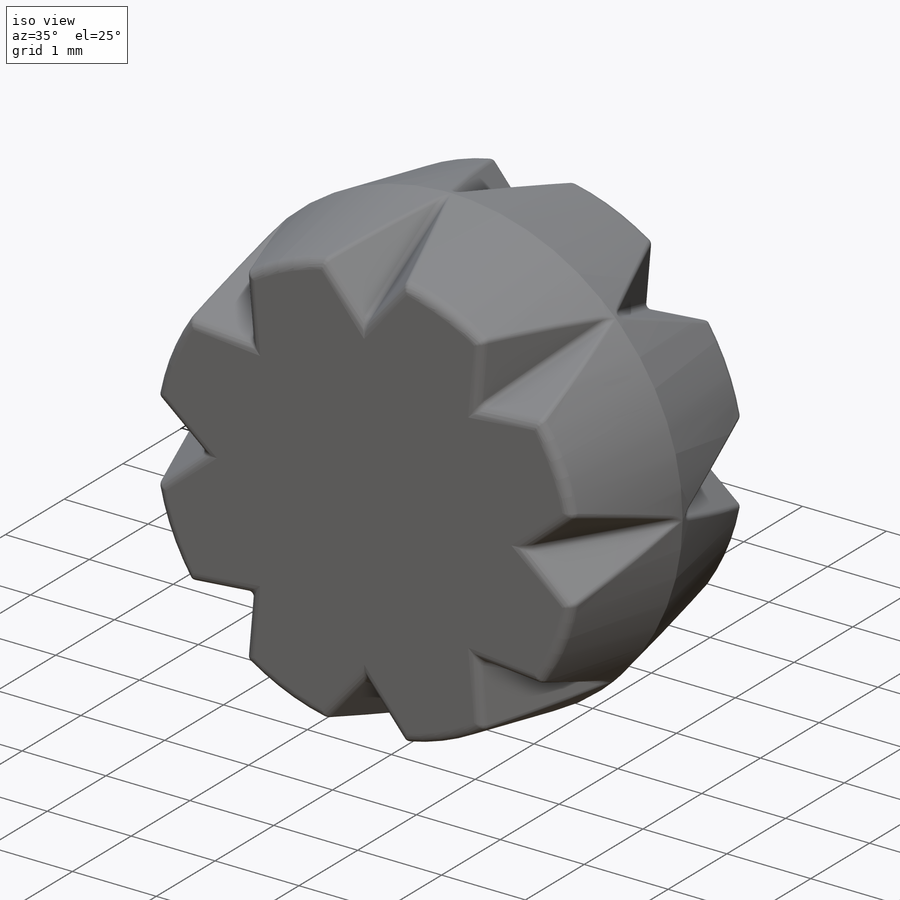
[diagram: iso view]
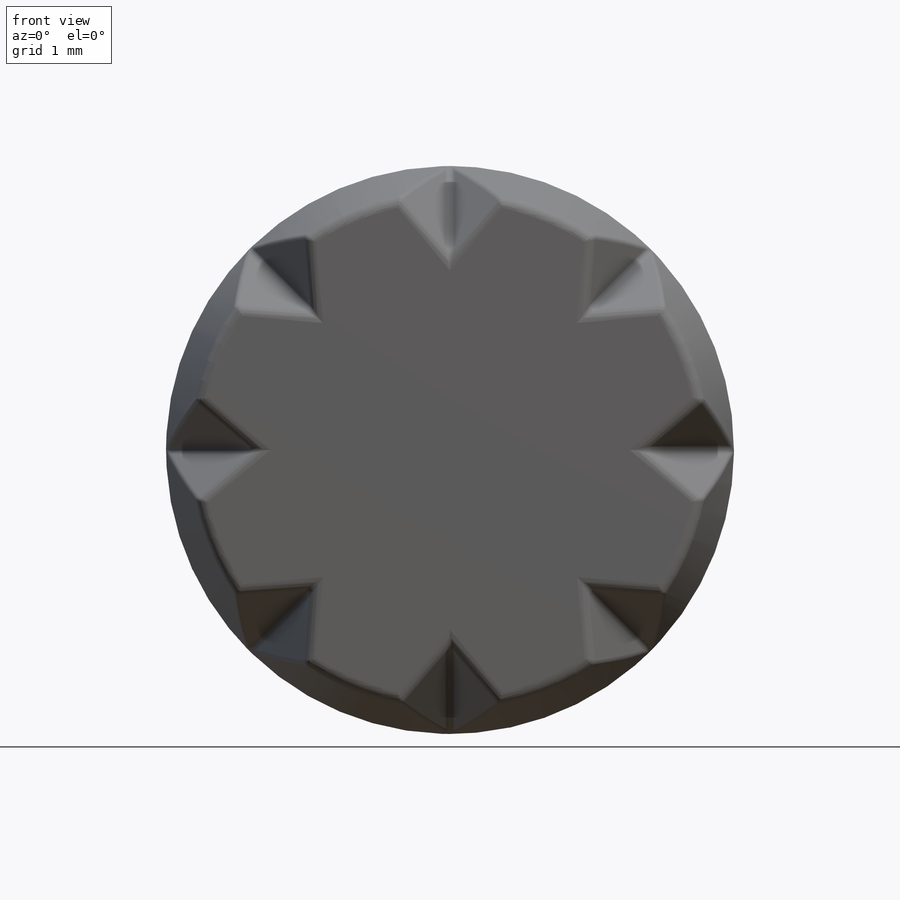
[diagram: front view]
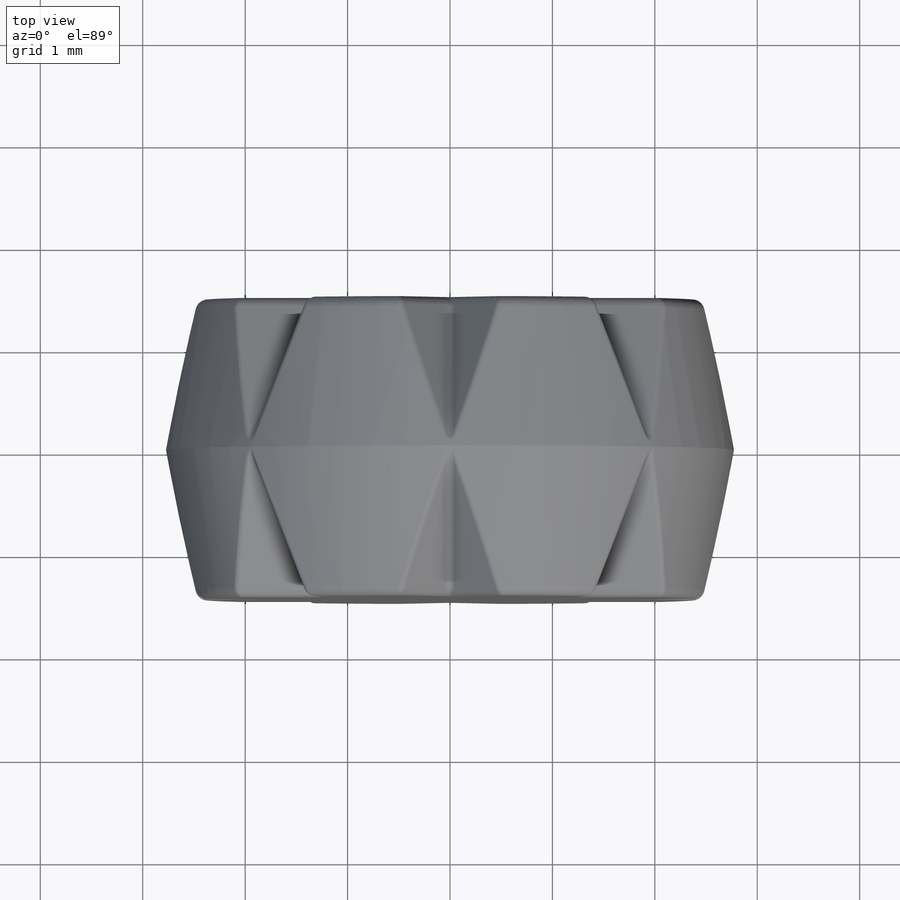
[diagram: top view]
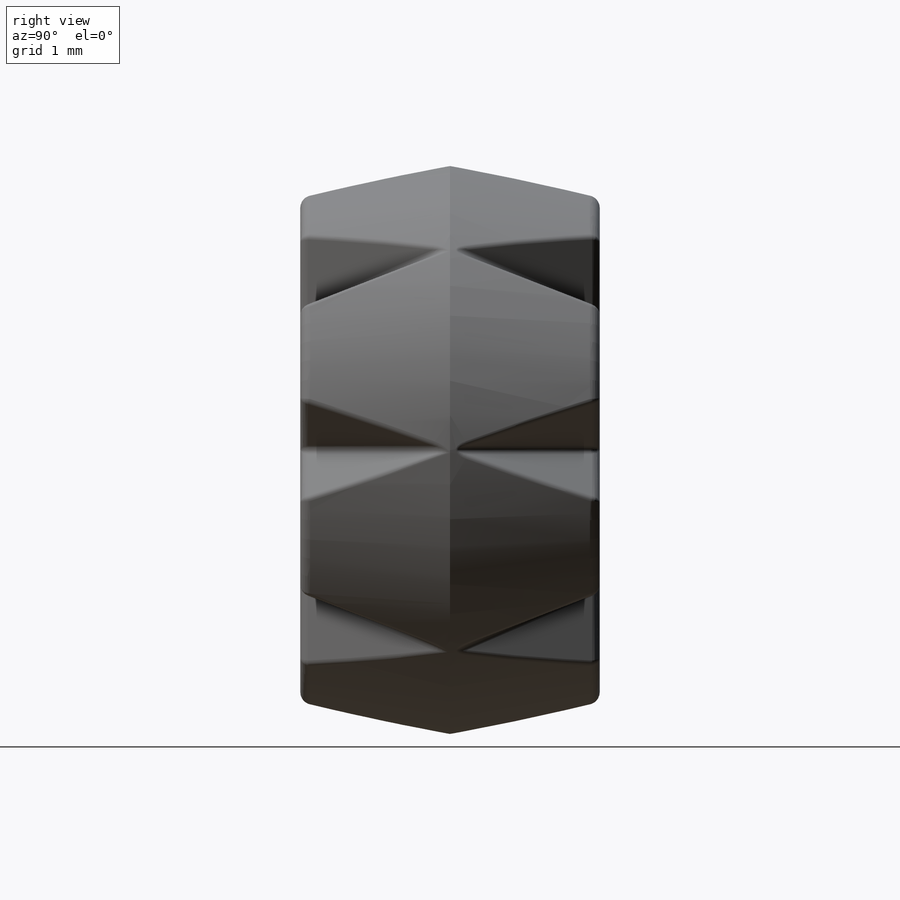
[diagram: right view]
SOLIDWORKS PART (.sldprt)
format: sldprt  version: not decoded by parser v0  size: 1,158,144 bytes
history: native  units: mm
features: fillet x5, sketch x4, material x1, extrude x1, cut_extrude x1, pattern_circular x1, mirror x1 (+11 scaffold rows collapsed)
feature tree (25):
  scaffold x11  (default folders/planes/origin — collapsed)
  material  "Material <not specified>"
  sketch  "Sketch1"  dims[D1=86.0mm]
  extrude  "Boss-Extrude1"  Depth=25mm
  sketch  "Sketch2"  dims[c1.D1=46.2mm c2.D1=40.0deg]
  sketch  "Sketch6"
  cut_extrude  "Cut-Extrude4"  [1 undecoded]
  pattern_circular  "CirPattern2"  Count=8 Angle=45deg
  mirror  "Mirror1"
  fillet  "Fillet1"  Radius=2mm
  fillet  "Fillet2"  Radius=1mm
  fillet  "Fillet4"  Radius=1mm
  fillet  "Fillet5"  Radius=1mm
  fillet  "Fillet6"  Radius=1mm
  sketch  "Sketch7"  dims[D1=2.0mm]
decode coverage: 10 of 13 modeling features carry decoded parameters
note: 1 parameter value undecoded
note: suppression state not decoded; provenance and decode notes live in map.json
